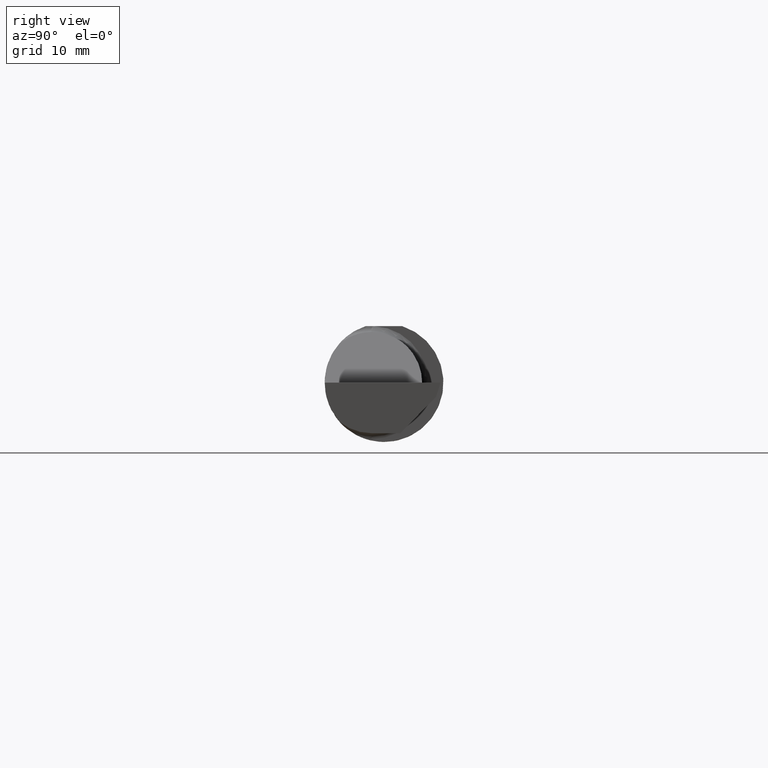
[diagram: clean part render]
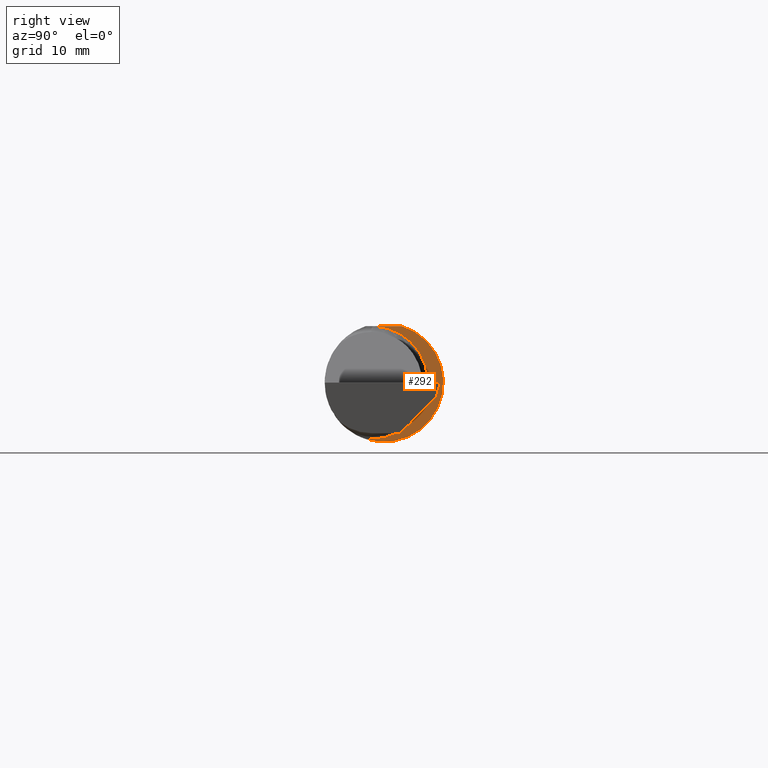
[diagram: same view with one face highlighted and labeled with its STEP entity id]
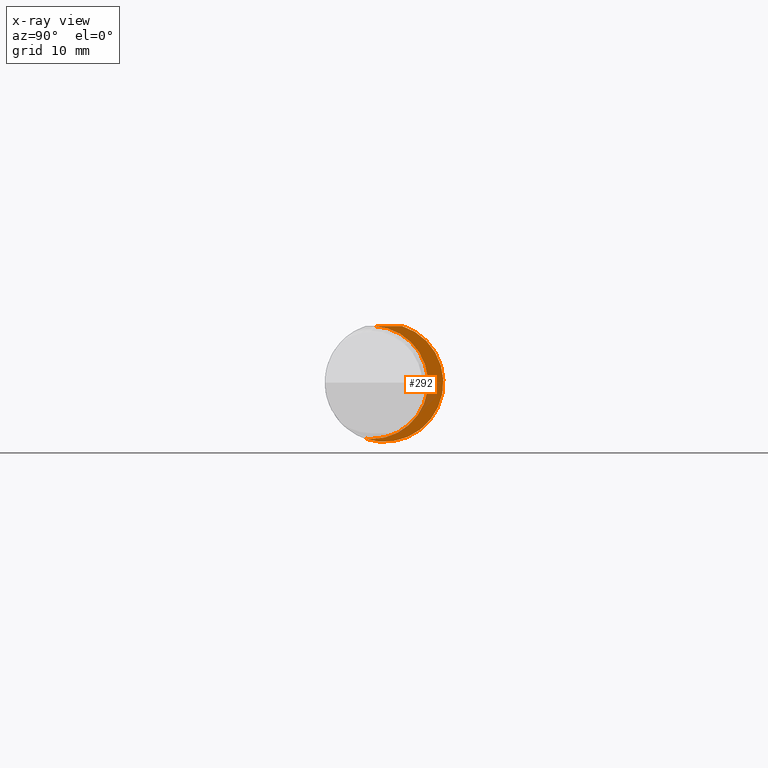
[diagram: x-ray of the same camera — body ghosted, the highlighted face saturated]
A machine part, right view. The second image highlights one B-rep face of the part: STEP entity #292.
The next image is the same camera in x-ray: the body ghosted, the highlighted face saturated — about 13% of this face is hidden behind the body in this view.
In plain terms, the highlighted planar face has unit normal (1, 0, 0).
Its self-contained STEP definition (entity closure, byte-faithful):
#8 = CARTESIAN_POINT ( 'NONE',  ( 1.700000000000000178, -0.05299999999999998462, 0.0000000000000000000 ) ) ;
#12 = EDGE_CURVE ( 'NONE', #184, #189, #138, .T. ) ;
#16 = CIRCLE ( 'NONE', #126, 0.2498499999999999888 ) ;
#84 = PLANE ( 'NONE',  #652 ) ;
#86 = DIRECTION ( 'NONE',  ( -1.000000000000000000, -0.0000000000000000000, -0.0000000000000000000 ) ) ;
#90 = ORIENTED_EDGE ( 'NONE', *, *, #275, .T. ) ;
#108 = EDGE_CURVE ( 'NONE', #189, #754, #16, .T. ) ;
#118 = ORIENTED_EDGE ( 'NONE', *, *, #108, .T. ) ;
#123 = EDGE_LOOP ( 'NONE', ( #118, #90, #528, #485 ) ) ;
#126 = AXIS2_PLACEMENT_3D ( 'NONE', #567, #249, #677 ) ;
#128 = DIRECTION ( 'NONE',  ( 0.0000000000000000000, 0.0000000000000000000, 1.000000000000000000 ) ) ;
#138 = CIRCLE ( 'NONE', #510, 0.2381499999999998618 ) ;
#148 = EDGE_CURVE ( 'NONE', #344, #184, #322, .T. ) ;
#180 = CARTESIAN_POINT ( 'NONE',  ( 1.700000000000000178, -0.05299999999999996381, -0.2381499999999998896 ) ) ;
#184 = VERTEX_POINT ( 'NONE', #180 ) ;
#189 = VERTEX_POINT ( 'NONE', #489 ) ;
#209 = CARTESIAN_POINT ( 'NONE',  ( 1.700000000000000178, 0.1851499999999998702, 0.0000000000000000000 ) ) ;
#249 = DIRECTION ( 'NONE',  ( 1.000000000000000000, 0.0000000000000000000, 0.0000000000000000000 ) ) ;
#275 = EDGE_CURVE ( 'NONE', #754, #344, #737, .T. ) ;
#279 = DIRECTION ( 'NONE',  ( 0.0000000000000000000, 0.0000000000000000000, -1.000000000000000000 ) ) ;
#292 = ADVANCED_FACE ( 'NONE', ( #721 ), #84, .T. ) ;
#296 = AXIS2_PLACEMENT_3D ( 'NONE', #8, #311, #726 ) ;
#311 = DIRECTION ( 'NONE',  ( -1.000000000000000000, -0.0000000000000000000, -0.0000000000000000000 ) ) ;
#319 = CARTESIAN_POINT ( 'NONE',  ( 1.700000000000000178, -0.05299999999999998462, 0.0000000000000000000 ) ) ;
#322 = CIRCLE ( 'NONE', #296, 0.2381499999999998618 ) ;
#336 = CARTESIAN_POINT ( 'NONE',  ( 1.700000000000000178, 0.2998500000000000609, 0.2378499999999999504 ) ) ;
#344 = VERTEX_POINT ( 'NONE', #378 ) ;
#378 = CARTESIAN_POINT ( 'NONE',  ( 1.700000000000000178, -0.04105010460297109365, 0.2378500000000000059 ) ) ;
#424 = VECTOR ( 'NONE', #745, 39.37007874015748143 ) ;
#485 = ORIENTED_EDGE ( 'NONE', *, *, #12, .T. ) ;
#489 = CARTESIAN_POINT ( 'NONE',  ( 1.700000000000000178, -0.08036415094339686982, -0.2365726648265747967 ) ) ;
#510 = AXIS2_PLACEMENT_3D ( 'NONE', #319, #86, #128 ) ;
#528 = ORIENTED_EDGE ( 'NONE', *, *, #148, .T. ) ;
#567 = CARTESIAN_POINT ( 'NONE',  ( 1.700000000000000178, 0.0000000000000000000, 0.0000000000000000000 ) ) ;
#620 = CARTESIAN_POINT ( 'NONE',  ( 1.700000000000000178, 0.07650098038587503646, 0.2378500000000000059 ) ) ;
#635 = DIRECTION ( 'NONE',  ( 1.000000000000000000, 0.0000000000000000000, 0.0000000000000000000 ) ) ;
#652 = AXIS2_PLACEMENT_3D ( 'NONE', #209, #635, #279 ) ;
#677 = DIRECTION ( 'NONE',  ( 0.0000000000000000000, 0.0000000000000000000, -1.000000000000000000 ) ) ;
#721 = FACE_OUTER_BOUND ( 'NONE', #123, .T. ) ;
#726 = DIRECTION ( 'NONE',  ( 0.0000000000000000000, 0.0000000000000000000, 1.000000000000000000 ) ) ;
#737 = LINE ( 'NONE', #336, #424 ) ;
#745 = DIRECTION ( 'NONE',  ( 0.0000000000000000000, -1.000000000000000000, 1.138839417068644240E-16 ) ) ;
#754 = VERTEX_POINT ( 'NONE', #620 ) ;